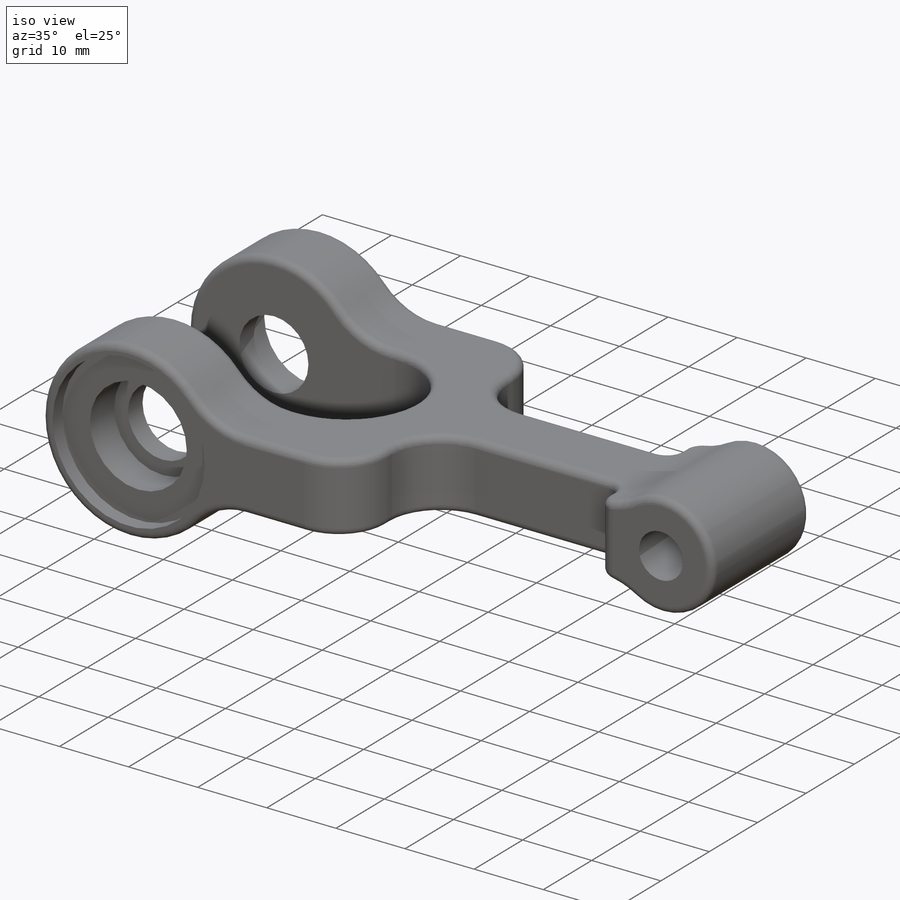
[diagram: iso view]
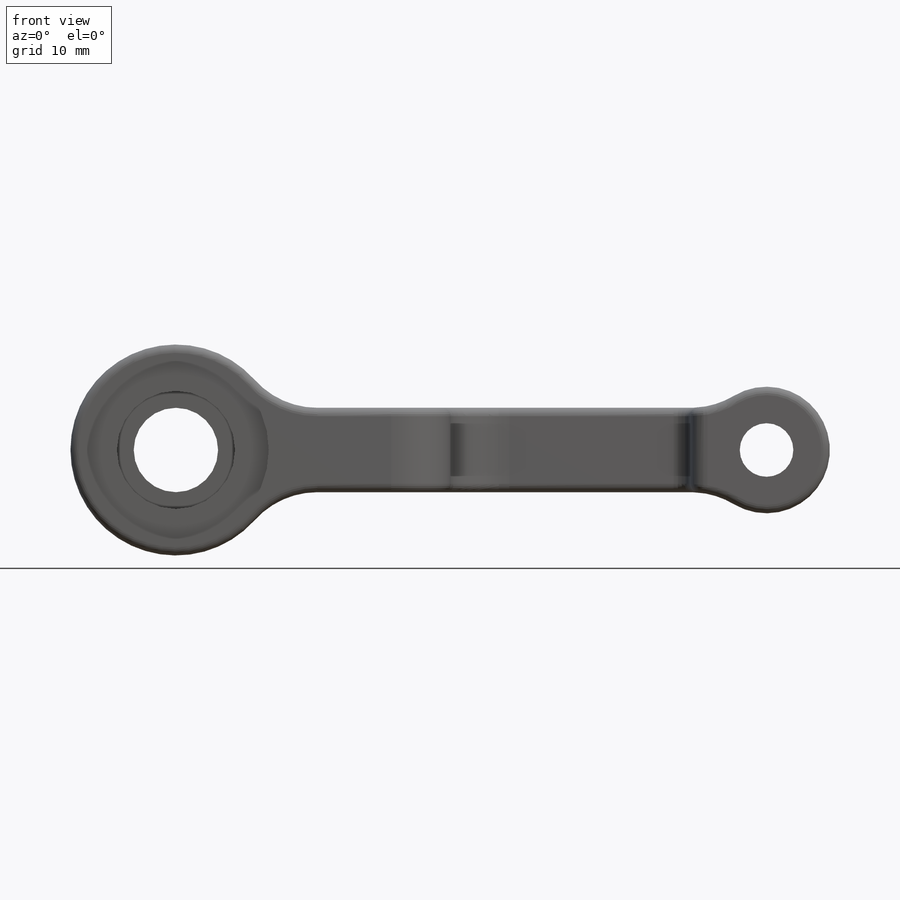
[diagram: front view]
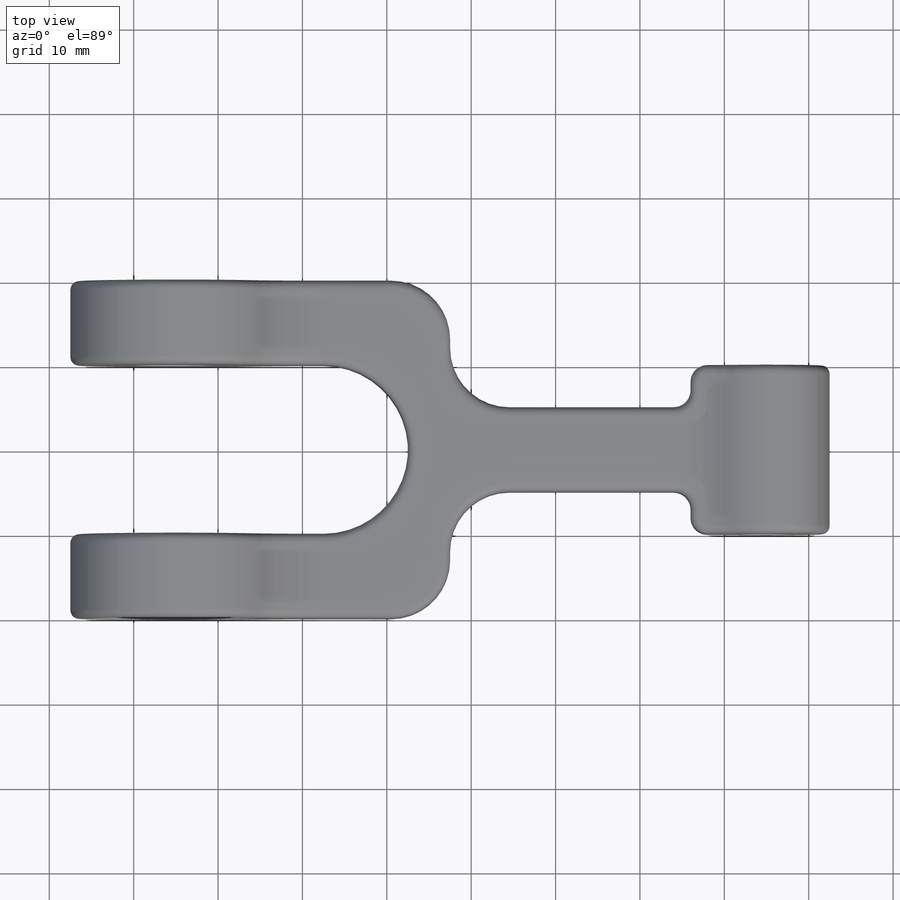
[diagram: top view]
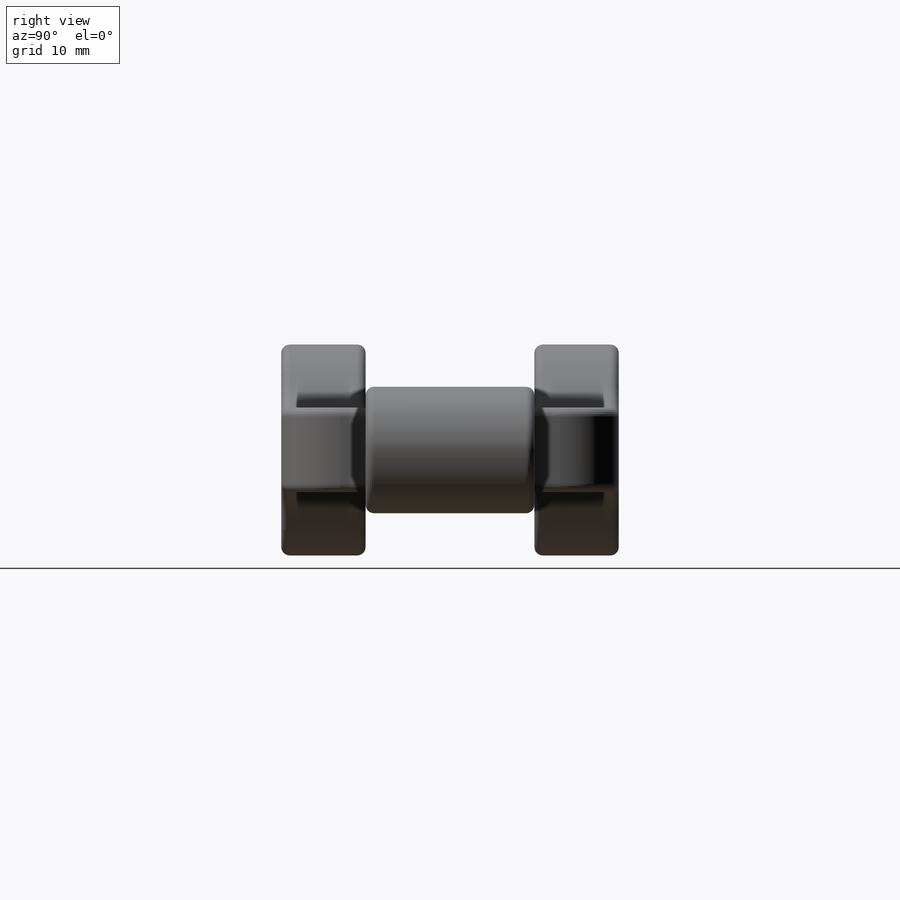
[diagram: right view]
SOLIDWORKS PART (.sldprt)
format: sldprt  version: not decoded by parser v0  size: 527,360 bytes
history: native  units: mm
features: sketch x7, cut_extrude x6, fillet x4, material x1, extrude x1, mirror x1 (+16 scaffold rows collapsed)
feature tree (36):
  scaffold x16  (default folders/planes/origin — collapsed)
  material  "Material <not specified>"
  sketch  "Sketch1"  dims[c1.D3=25.0mm c1.D4=15.0mm c1.D5=10.0mm c1.D1=10.0mm c1.D2=70.0mm c2.D5=15.0mm]
  extrude  "Boss-Extrude1"  Depth=40mm
  sketch  "Sketch2"  dims[D1=20.0mm D2=30.0mm]
  cut_extrude  "Cut-Extrude1"  [1 undecoded]
  sketch  "Sketch3"  dims[c1.D3=10.0mm c1.D1=10.0mm c1.D2=20.0mm c2.D3=15.0mm]
  cut_extrude  "Cut-Extrude2"  [1 undecoded]
  sketch  "Sketch4"  dims[D1=10.0mm]
  cut_extrude  "Cut-Extrude3"  [1 undecoded]
  sketch  "Sketch5"  dims[D1=2.0mm]
  cut_extrude  "Cut-Extrude4"  Depth=7mm
  sketch  "Sketch6"  dims[D1=4.0mm]
  cut_extrude  "Cut-Extrude5"  Depth=2mm
  sketch  "Sketch7"  dims[D1=6.35mm]
  cut_extrude  "Cut-Extrude6"  [1 undecoded]
  mirror  "Mirror1"
  fillet  "Fillet6"  Radius=7mm
  fillet  "Fillet7"  Radius=2mm
  fillet  "Fillet8"  Radius=1mm
  fillet  "Fillet9"  Radius=1mm
decode coverage: 14 of 19 modeling features carry decoded parameters
note: 4 parameter values undecoded
summary: no parameter record found for 4 features
note: suppression state not decoded; provenance and decode notes live in map.json
